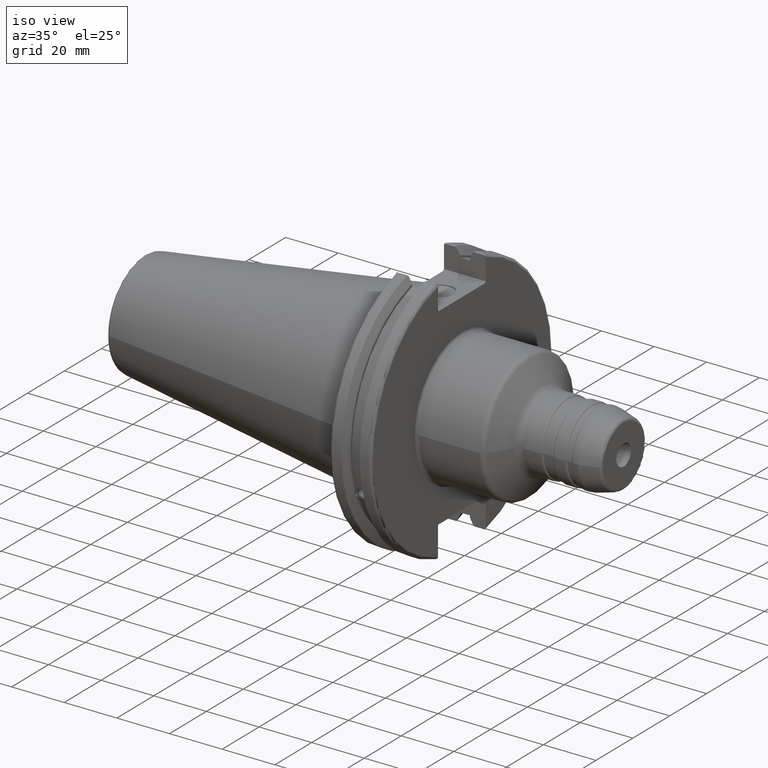
[diagram: clean part render]
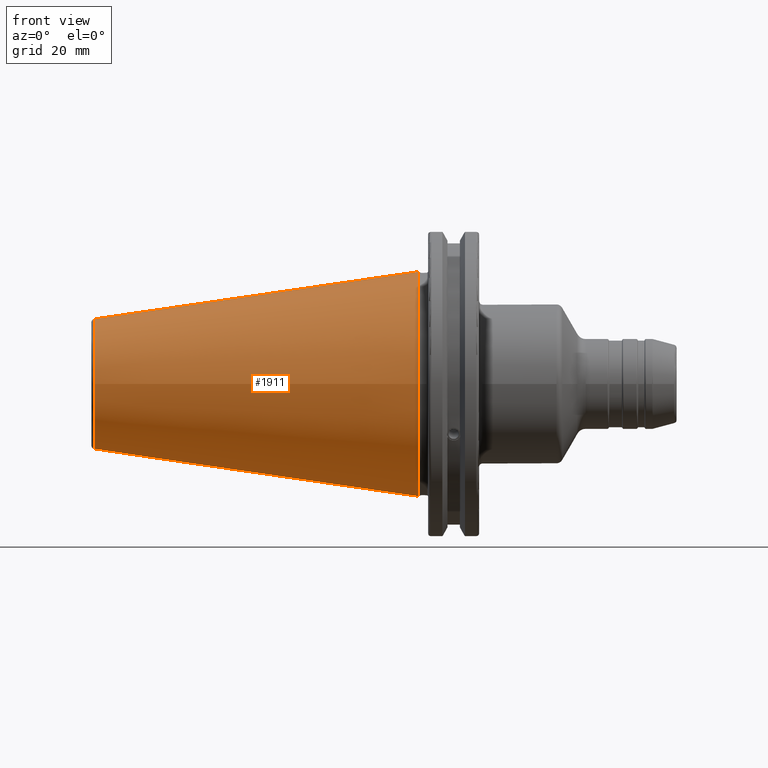
[diagram: tour spotlight — one face highlighted and labeled with its STEP entity id]
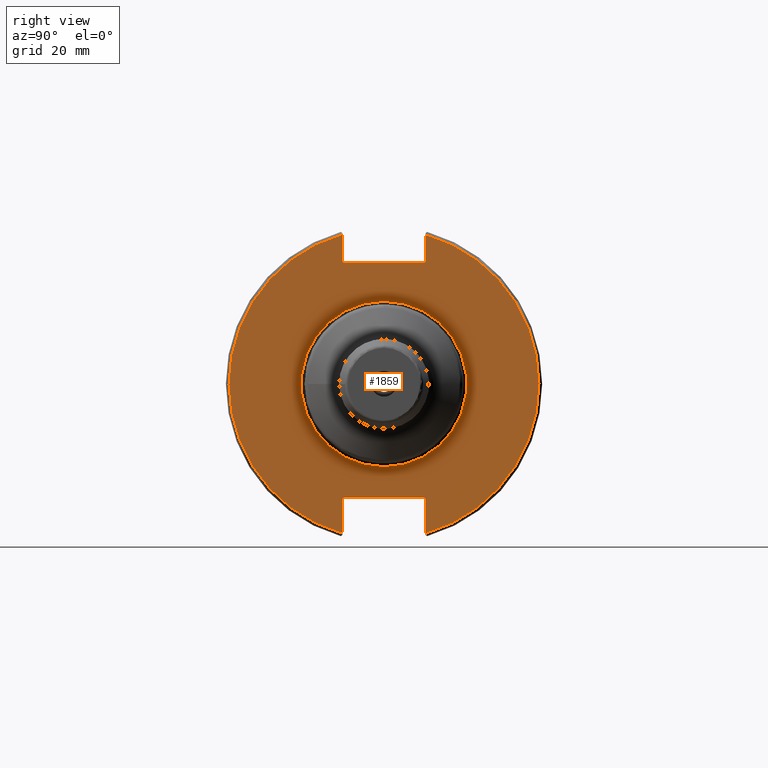
[diagram: tour spotlight — one face highlighted and labeled with its STEP entity id]
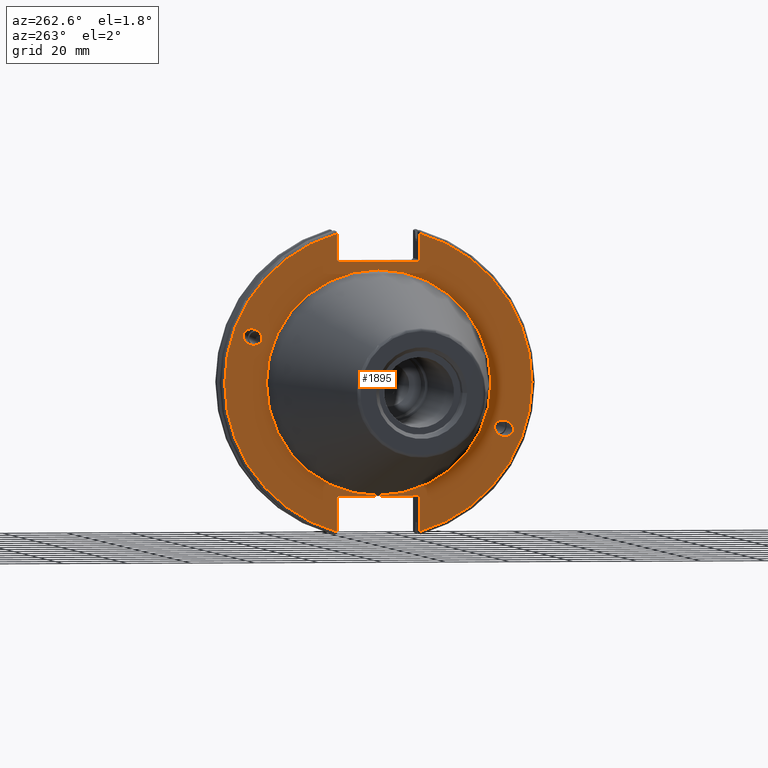
[diagram: tour spotlight — one face highlighted and labeled with its STEP entity id]
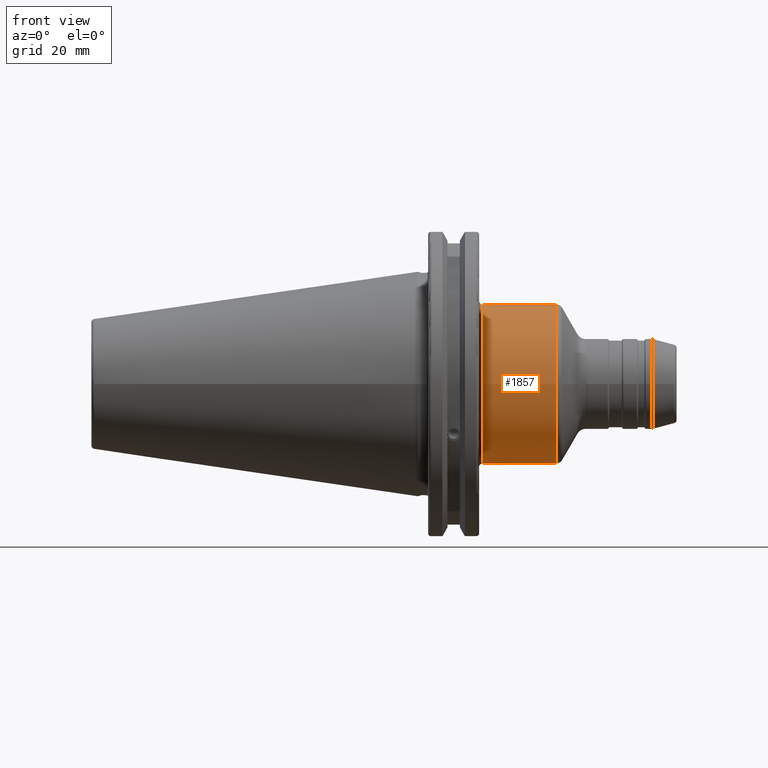
[diagram: tour spotlight — one face highlighted and labeled with its STEP entity id]
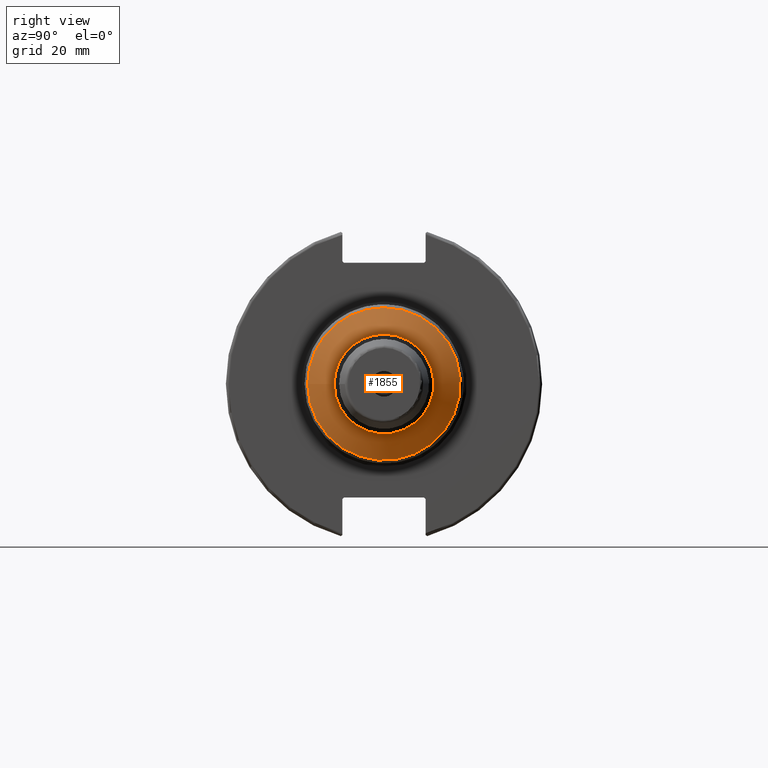
[diagram: tour spotlight — one face highlighted and labeled with its STEP entity id]
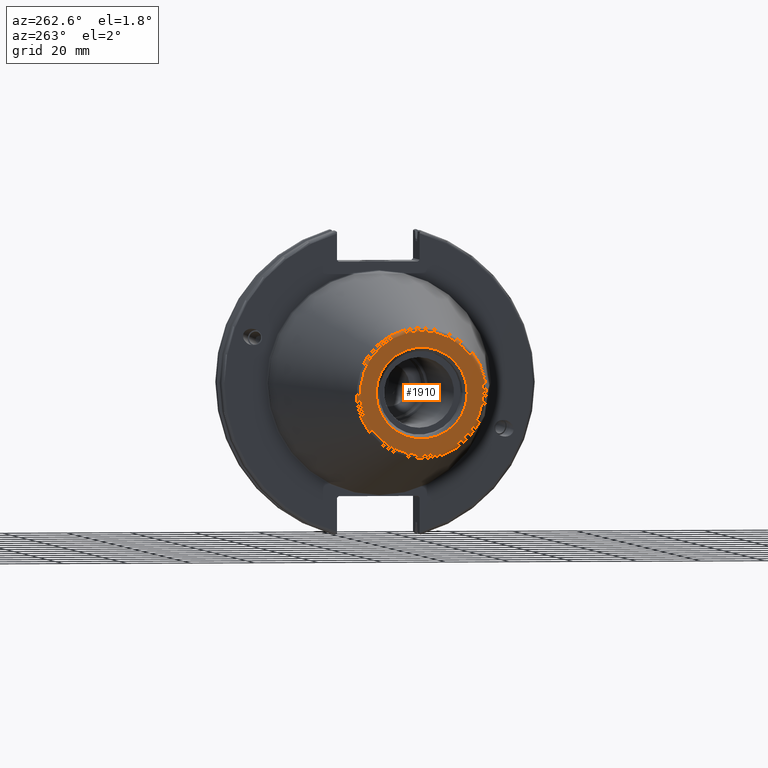
[diagram: tour spotlight — one face highlighted and labeled with its STEP entity id]
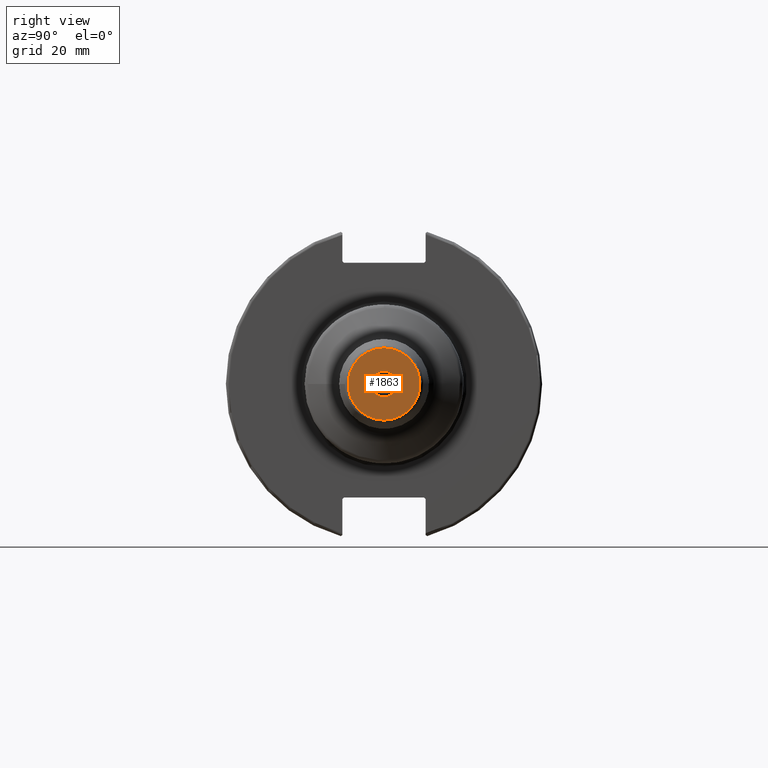
[diagram: tour spotlight — one face highlighted and labeled with its STEP entity id]
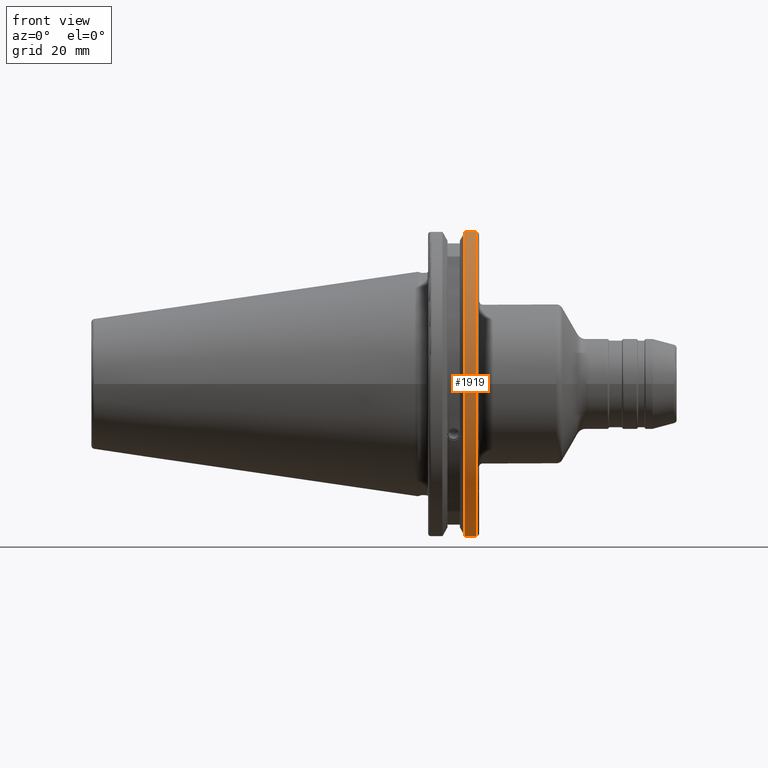
[diagram: tour spotlight — one face highlighted and labeled with its STEP entity id]
A machine part: a face-by-face anatomy tour. The part has 108 B-rep faces; the first image is the clean iso view, then the 8 largest visible faces are spotlighted one at a time (largest first), each with its STEP entity span.

Face 1 — front view, entity #1911. In plain terms, the highlighted conical surface has half-angle 8.297 deg.
Definition (entity closure, byte-faithful):
#160=CONICAL_SURFACE('',#2161,27.5166666666666,0.14481249823894);
#245=FACE_OUTER_BOUND('',#371,.T.);
#371=EDGE_LOOP('',(#1668,#1669,#1670,#1671,#1672));
#489=LINE('',#3780,#593);
#593=VECTOR('',#2691,27.5166666666666);
#722=CIRCLE('',#2155,20.233121911427);
#723=CIRCLE('',#2156,20.233121911427);
#727=CIRCLE('',#2162,34.925);
#920=VERTEX_POINT('',#3767);
#921=VERTEX_POINT('',#3768);
#924=VERTEX_POINT('',#3778);
#1185=EDGE_CURVE('',#920,#921,#722,.T.);
#1186=EDGE_CURVE('',#921,#920,#723,.T.);
#1190=EDGE_CURVE('',#924,#924,#727,.T.);
#1191=EDGE_CURVE('',#924,#921,#489,.T.);
#1668=ORIENTED_EDGE('',*,*,#1190,.F.);
#1669=ORIENTED_EDGE('',*,*,#1191,.T.);
#1670=ORIENTED_EDGE('',*,*,#1185,.F.);
#1671=ORIENTED_EDGE('',*,*,#1186,.F.);
#1672=ORIENTED_EDGE('',*,*,#1191,.F.);
#1911=ADVANCED_FACE('',(#245),#160,.T.);
#2155=AXIS2_PLACEMENT_3D('',#3769,#2675,#2676);
#2156=AXIS2_PLACEMENT_3D('',#3770,#2677,#2678);
#2161=AXIS2_PLACEMENT_3D('',#3777,#2687,#2688);
#2162=AXIS2_PLACEMENT_3D('',#3779,#2689,#2690);
#2675=DIRECTION('center_axis',(-1.,0.,0.));
#2676=DIRECTION('ref_axis',(0.,-1.,3.06161699786838E-17));
#2677=DIRECTION('center_axis',(-1.,0.,0.));
#2678=DIRECTION('ref_axis',(0.,-1.,3.06161699786838E-17));
#2687=DIRECTION('center_axis',(1.,0.,0.));
#2688=DIRECTION('ref_axis',(0.,1.,0.));
#2689=DIRECTION('center_axis',(1.,0.,0.));
#2690=DIRECTION('ref_axis',(0.,0.,-1.));
#2691=DIRECTION('',(-0.989532981063281,0.144306893071729,1.76724974695192E-17));
#3767=CARTESIAN_POINT('',(-100.744306893072,-2.47784279855872E-15,20.233121911427));
#3768=CARTESIAN_POINT('',(-100.744306893072,-20.233121911427,-2.47784279855872E-15));
#3769=CARTESIAN_POINT('Origin',(-100.744306893072,0.,-3.09730349819841E-15));
#3770=CARTESIAN_POINT('Origin',(-100.744306893072,0.,-3.09730349819841E-15));
#3777=CARTESIAN_POINT('Origin',(-50.8,0.,0.));
#3778=CARTESIAN_POINT('',(-8.88178419700125E-15,-34.925,-4.27707894602213E-15));
#3779=CARTESIAN_POINT('Origin',(0.,0.,0.));
#3780=CARTESIAN_POINT('',(-50.8,-27.5166666666666,-3.3698197756538E-15));

Face 2 — right view, entity #1859. In plain terms, the highlighted planar face has unit normal (1, 0, 0).
Definition (entity closure, byte-faithful):
#33=PLANE('',#2053);
#91=FACE_BOUND('',#304,.T.);
#193=FACE_OUTER_BOUND('',#303,.T.);
#303=EDGE_LOOP('',(#1378,#1379,#1380,#1381,#1382,#1383,#1384,#1385,#1386,
#1387,#1388,#1389));
#304=EDGE_LOOP('',(#1390));
#418=LINE('',#3026,#522);
#419=LINE('',#3028,#523);
#420=LINE('',#3030,#524);
#421=LINE('',#3032,#525);
#422=LINE('',#3034,#526);
#423=LINE('',#3038,#527);
#424=LINE('',#3040,#528);
#425=LINE('',#3042,#529);
#426=LINE('',#3044,#530);
#427=LINE('',#3045,#531);
#522=VECTOR('',#2404,10.);
#523=VECTOR('',#2405,10.);
#524=VECTOR('',#2406,10.);
#525=VECTOR('',#2407,10.);
#526=VECTOR('',#2408,10.);
#527=VECTOR('',#2411,10.);
#528=VECTOR('',#2412,10.);
#529=VECTOR('',#2413,10.);
#530=VECTOR('',#2414,10.);
#531=VECTOR('',#2415,10.);
#672=CIRCLE('',#2052,25.75);
#673=CIRCLE('',#2054,48.2125);
#674=CIRCLE('',#2055,48.2125);
#794=VERTEX_POINT('',#3018);
#795=VERTEX_POINT('',#3022);
#796=VERTEX_POINT('',#3023);
#797=VERTEX_POINT('',#3025);
#798=VERTEX_POINT('',#3027);
#799=VERTEX_POINT('',#3029);
#800=VERTEX_POINT('',#3031);
#801=VERTEX_POINT('',#3033);
#802=VERTEX_POINT('',#3035);
#803=VERTEX_POINT('',#3037);
#804=VERTEX_POINT('',#3039);
#805=VERTEX_POINT('',#3041);
#806=VERTEX_POINT('',#3043);
#1014=EDGE_CURVE('',#794,#794,#672,.T.);
#1015=EDGE_CURVE('',#795,#796,#673,.T.);
#1016=EDGE_CURVE('',#795,#797,#418,.T.);
#1017=EDGE_CURVE('',#798,#797,#419,.T.);
#1018=EDGE_CURVE('',#798,#799,#420,.T.);
#1019=EDGE_CURVE('',#800,#799,#421,.T.);
#1020=EDGE_CURVE('',#800,#801,#422,.T.);
#1021=EDGE_CURVE('',#802,#801,#674,.T.);
#1022=EDGE_CURVE('',#802,#803,#423,.T.);
#1023=EDGE_CURVE('',#804,#803,#424,.T.);
#1024=EDGE_CURVE('',#804,#805,#425,.T.);
#1025=EDGE_CURVE('',#806,#805,#426,.T.);
#1026=EDGE_CURVE('',#806,#796,#427,.T.);
#1378=ORIENTED_EDGE('',*,*,#1015,.F.);
#1379=ORIENTED_EDGE('',*,*,#1016,.T.);
#1380=ORIENTED_EDGE('',*,*,#1017,.F.);
#1381=ORIENTED_EDGE('',*,*,#1018,.T.);
#1382=ORIENTED_EDGE('',*,*,#1019,.F.);
#1383=ORIENTED_EDGE('',*,*,#1020,.T.);
#1384=ORIENTED_EDGE('',*,*,#1021,.F.);
#1385=ORIENTED_EDGE('',*,*,#1022,.T.);
#1386=ORIENTED_EDGE('',*,*,#1023,.F.);
#1387=ORIENTED_EDGE('',*,*,#1024,.T.);
#1388=ORIENTED_EDGE('',*,*,#1025,.F.);
#1389=ORIENTED_EDGE('',*,*,#1026,.T.);
#1390=ORIENTED_EDGE('',*,*,#1014,.F.);
#1859=ADVANCED_FACE('',(#193,#91),#33,.T.);
#2052=AXIS2_PLACEMENT_3D('',#3020,#2398,#2399);
#2053=AXIS2_PLACEMENT_3D('',#3021,#2400,#2401);
#2054=AXIS2_PLACEMENT_3D('',#3024,#2402,#2403);
#2055=AXIS2_PLACEMENT_3D('',#3036,#2409,#2410);
#2398=DIRECTION('center_axis',(1.,0.,0.));
#2399=DIRECTION('ref_axis',(0.,-1.,-1.22464679914735E-16));
#2400=DIRECTION('center_axis',(1.,0.,0.));
#2401=DIRECTION('ref_axis',(0.,0.,-1.));
#2402=DIRECTION('center_axis',(-1.,0.,0.));
#2403=DIRECTION('ref_axis',(0.,1.,-6.12323399573677E-17));
#2404=DIRECTION('',(0.,0.,-1.));
#2405=DIRECTION('',(0.,0.707106781186549,0.707106781186546));
#2406=DIRECTION('',(0.,-1.,0.));
#2407=DIRECTION('',(0.,0.707106781186549,-0.707106781186546));
#2408=DIRECTION('',(0.,0.,1.));
#2409=DIRECTION('center_axis',(-1.,0.,0.));
#2410=DIRECTION('ref_axis',(0.,-1.,1.60812264967664E-16));
#2411=DIRECTION('',(0.,0.,1.));
#2412=DIRECTION('',(0.,-0.707106781186549,-0.707106781186546));
#2413=DIRECTION('',(0.,1.,0.));
#2414=DIRECTION('',(0.,-0.707106781186549,0.707106781186546));
#2415=DIRECTION('',(0.,0.,-1.));
#3018=CARTESIAN_POINT('',(19.05,-3.15346550780443E-15,-25.75));
#3020=CARTESIAN_POINT('Origin',(19.05,0.,0.));
#3021=CARTESIAN_POINT('Origin',(19.05,0.,0.));
#3022=CARTESIAN_POINT('',(19.05,12.95,46.4407434937254));
#3023=CARTESIAN_POINT('',(19.05,12.95,-46.4407434937254));
#3024=CARTESIAN_POINT('Origin',(19.05,0.,0.));
#3025=CARTESIAN_POINT('',(19.05,12.95,38.219));
#3026=CARTESIAN_POINT('',(19.05,12.95,18.8595));
#3027=CARTESIAN_POINT('',(19.05,12.45,37.719));
#3028=CARTESIAN_POINT('',(19.05,0.0327499999999836,25.30175));
#3029=CARTESIAN_POINT('',(19.05,-12.45,37.719));
#3030=CARTESIAN_POINT('',(19.05,0.,37.719));
#3031=CARTESIAN_POINT('',(19.05,-12.95,38.219));
#3032=CARTESIAN_POINT('',(19.05,-0.0327499999999817,25.30175));
#3033=CARTESIAN_POINT('',(19.05,-12.95,46.4407434937254));
#3034=CARTESIAN_POINT('',(19.05,-12.95,18.8595));
#3035=CARTESIAN_POINT('',(19.05,-12.95,-46.4407434937254));
#3036=CARTESIAN_POINT('Origin',(19.05,0.,0.));
#3037=CARTESIAN_POINT('',(19.05,-12.95,-35.806));
#3038=CARTESIAN_POINT('',(19.05,-12.95,-17.653));
#3039=CARTESIAN_POINT('',(19.05,-12.45,-35.306));
#3040=CARTESIAN_POINT('',(19.05,-0.635999999999989,-23.492));
#3041=CARTESIAN_POINT('',(19.05,12.45,-35.306));
#3042=CARTESIAN_POINT('',(19.05,-3.33066907387547E-15,-35.306));
#3043=CARTESIAN_POINT('',(19.05,12.95,-35.806));
#3044=CARTESIAN_POINT('',(19.05,0.635999999999982,-23.492));
#3045=CARTESIAN_POINT('',(19.05,12.95,-17.653));

Face 3 — auxiliary view, entity #1895. In plain terms, the highlighted planar face has unit normal (-1, 0, 0).
Definition (entity closure, byte-faithful):
#31=ELLIPSE('',#2088,3.05193647190364,2.5);
#32=ELLIPSE('',#2122,3.05193647190364,2.5);
#45=PLANE('',#2132);
#103=FACE_BOUND('',#352,.T.);
#104=FACE_BOUND('',#353,.T.);
#105=FACE_BOUND('',#354,.T.);
#229=FACE_OUTER_BOUND('',#351,.T.);
#351=EDGE_LOOP('',(#1561,#1562,#1563,#1564,#1565,#1566,#1567,#1568,#1569,
#1570,#1571,#1572));
#352=EDGE_LOOP('',(#1573));
#353=EDGE_LOOP('',(#1574));
#354=EDGE_LOOP('',(#1575));
#459=LINE('',#3548,#563);
#460=LINE('',#3550,#564);
#461=LINE('',#3552,#565);
#462=LINE('',#3554,#566);
#463=LINE('',#3556,#567);
#464=LINE('',#3560,#568);
#465=LINE('',#3562,#569);
#466=LINE('',#3564,#570);
#467=LINE('',#3566,#571);
#468=LINE('',#3567,#572);
#563=VECTOR('',#2603,10.);
#564=VECTOR('',#2604,10.);
#565=VECTOR('',#2605,10.);
#566=VECTOR('',#2606,10.);
#567=VECTOR('',#2607,10.);
#568=VECTOR('',#2610,10.);
#569=VECTOR('',#2611,10.);
#570=VECTOR('',#2612,10.);
#571=VECTOR('',#2613,10.);
#572=VECTOR('',#2614,10.);
#712=CIRCLE('',#2130,35.125);
#714=CIRCLE('',#2133,48.2125);
#715=CIRCLE('',#2134,48.2125);
#835=VERTEX_POINT('',#3265);
#873=VERTEX_POINT('',#3524);
#878=VERTEX_POINT('',#3539);
#879=VERTEX_POINT('',#3544);
#880=VERTEX_POINT('',#3545);
#881=VERTEX_POINT('',#3547);
#882=VERTEX_POINT('',#3549);
#883=VERTEX_POINT('',#3551);
#884=VERTEX_POINT('',#3553);
#885=VERTEX_POINT('',#3555);
#886=VERTEX_POINT('',#3557);
#887=VERTEX_POINT('',#3559);
#888=VERTEX_POINT('',#3561);
#889=VERTEX_POINT('',#3563);
#890=VERTEX_POINT('',#3565);
#1065=EDGE_CURVE('',#835,#835,#31,.T.);
#1116=EDGE_CURVE('',#873,#873,#32,.T.);
#1123=EDGE_CURVE('',#878,#878,#712,.T.);
#1125=EDGE_CURVE('',#879,#880,#714,.T.);
#1126=EDGE_CURVE('',#879,#881,#459,.T.);
#1127=EDGE_CURVE('',#882,#881,#460,.T.);
#1128=EDGE_CURVE('',#882,#883,#461,.T.);
#1129=EDGE_CURVE('',#884,#883,#462,.T.);
#1130=EDGE_CURVE('',#884,#885,#463,.T.);
#1131=EDGE_CURVE('',#886,#885,#715,.T.);
#1132=EDGE_CURVE('',#886,#887,#464,.T.);
#1133=EDGE_CURVE('',#888,#887,#465,.T.);
#1134=EDGE_CURVE('',#888,#889,#466,.T.);
#1135=EDGE_CURVE('',#890,#889,#467,.T.);
#1136=EDGE_CURVE('',#890,#880,#468,.T.);
#1561=ORIENTED_EDGE('',*,*,#1125,.F.);
#1562=ORIENTED_EDGE('',*,*,#1126,.T.);
#1563=ORIENTED_EDGE('',*,*,#1127,.F.);
#1564=ORIENTED_EDGE('',*,*,#1128,.T.);
#1565=ORIENTED_EDGE('',*,*,#1129,.F.);
#1566=ORIENTED_EDGE('',*,*,#1130,.T.);
#1567=ORIENTED_EDGE('',*,*,#1131,.F.);
#1568=ORIENTED_EDGE('',*,*,#1132,.T.);
#1569=ORIENTED_EDGE('',*,*,#1133,.F.);
#1570=ORIENTED_EDGE('',*,*,#1134,.T.);
#1571=ORIENTED_EDGE('',*,*,#1135,.F.);
#1572=ORIENTED_EDGE('',*,*,#1136,.T.);
#1573=ORIENTED_EDGE('',*,*,#1065,.T.);
#1574=ORIENTED_EDGE('',*,*,#1116,.T.);
#1575=ORIENTED_EDGE('',*,*,#1123,.F.);
#1895=ADVANCED_FACE('',(#229,#103,#104,#105),#45,.T.);
#2088=AXIS2_PLACEMENT_3D('',#3267,#2493,#2494);
#2122=AXIS2_PLACEMENT_3D('',#3526,#2577,#2578);
#2130=AXIS2_PLACEMENT_3D('',#3541,#2595,#2596);
#2132=AXIS2_PLACEMENT_3D('',#3543,#2599,#2600);
#2133=AXIS2_PLACEMENT_3D('',#3546,#2601,#2602);
#2134=AXIS2_PLACEMENT_3D('',#3558,#2608,#2609);
#2493=DIRECTION('center_axis',(1.,0.,0.));
#2494=DIRECTION('ref_axis',(0.,-0.939692620785908,-0.342020143325668));
#2577=DIRECTION('center_axis',(1.,0.,0.));
#2578=DIRECTION('ref_axis',(0.,0.939692620785908,0.342020143325669));
#2595=DIRECTION('center_axis',(-1.,0.,0.));
#2596=DIRECTION('ref_axis',(0.,-1.,1.83697019872103E-16));
#2599=DIRECTION('center_axis',(-1.,0.,0.));
#2600=DIRECTION('ref_axis',(0.,0.,1.));
#2601=DIRECTION('center_axis',(1.,0.,0.));
#2602=DIRECTION('ref_axis',(0.,-1.,1.60812264967664E-16));
#2603=DIRECTION('',(0.,0.,-1.));
#2604=DIRECTION('',(0.,-0.707106781186549,0.707106781186546));
#2605=DIRECTION('',(0.,1.,0.));
#2606=DIRECTION('',(0.,-0.707106781186549,-0.707106781186546));
#2607=DIRECTION('',(0.,0.,1.));
#2608=DIRECTION('center_axis',(1.,0.,0.));
#2609=DIRECTION('ref_axis',(0.,1.,-6.12323399573677E-17));
#2610=DIRECTION('',(0.,0.,1.));
#2611=DIRECTION('',(0.,0.707106781186549,-0.707106781186546));
#2612=DIRECTION('',(0.,-1.,0.));
#2613=DIRECTION('',(0.,0.707106781186549,0.707106781186546));
#2614=DIRECTION('',(0.,0.,-1.));
#3265=CARTESIAN_POINT('',(3.175,-36.5992078912529,-13.3210222701368));
#3267=CARTESIAN_POINT('Origin',(3.175,-39.4670900730082,-14.3648460196781));
#3524=CARTESIAN_POINT('',(3.175,36.5992078912529,13.3210222701368));
#3526=CARTESIAN_POINT('Origin',(3.175,39.4670900730082,14.3648460196781));
#3539=CARTESIAN_POINT('',(3.175,-4.30157188200508E-15,35.125));
#3541=CARTESIAN_POINT('Origin',(3.175,0.,0.));
#3543=CARTESIAN_POINT('Origin',(3.175,49.2125,0.));
#3544=CARTESIAN_POINT('',(3.175,-12.95,46.4407434937254));
#3545=CARTESIAN_POINT('',(3.175,-12.95,-46.4407434937254));
#3546=CARTESIAN_POINT('Origin',(3.175,0.,0.));
#3547=CARTESIAN_POINT('',(3.175,-12.95,38.219));
#3548=CARTESIAN_POINT('',(3.175,-12.95,18.8595));
#3549=CARTESIAN_POINT('',(3.175,-12.45,37.719));
#3550=CARTESIAN_POINT('',(3.175,12.2703750000001,12.998625));
#3551=CARTESIAN_POINT('',(3.175,12.45,37.719));
#3552=CARTESIAN_POINT('',(3.175,24.60625,37.719));
#3553=CARTESIAN_POINT('',(3.175,12.95,38.219));
#3554=CARTESIAN_POINT('',(3.175,12.335875,37.604875));
#3555=CARTESIAN_POINT('',(3.175,12.95,46.4407434937254));
#3556=CARTESIAN_POINT('',(3.175,12.95,18.8595));
#3557=CARTESIAN_POINT('',(3.175,12.95,-46.4407434937254));
#3558=CARTESIAN_POINT('Origin',(3.175,0.,0.));
#3559=CARTESIAN_POINT('',(3.175,12.95,-35.806));
#3560=CARTESIAN_POINT('',(3.175,12.95,-17.653));
#3561=CARTESIAN_POINT('',(3.175,12.45,-35.306));
#3562=CARTESIAN_POINT('',(3.175,12.939125,-35.795125));
#3563=CARTESIAN_POINT('',(3.175,-12.45,-35.306));
#3564=CARTESIAN_POINT('',(3.175,24.60625,-35.306));
#3565=CARTESIAN_POINT('',(3.175,-12.95,-35.806));
#3566=CARTESIAN_POINT('',(3.175,11.6671250000001,-11.188875));
#3567=CARTESIAN_POINT('',(3.175,-12.95,-17.653));

Face 4 — front view, entity #1857. In plain terms, the highlighted cylindrical surface (bore or boss wall) has radius 24.75 mm, axis along (1, 0, 0).
Definition (entity closure, byte-faithful):
#191=FACE_OUTER_BOUND('',#301,.T.);
#301=EDGE_LOOP('',(#1367,#1368,#1369,#1370,#1371,#1372));
#417=LINE('',#3013,#521);
#521=VECTOR('',#2389,24.75);
#667=CIRCLE('',#2045,24.75);
#668=CIRCLE('',#2046,24.75);
#669=CIRCLE('',#2048,24.75);
#670=CIRCLE('',#2049,24.75);
#790=VERTEX_POINT('',#3006);
#791=VERTEX_POINT('',#3008);
#792=VERTEX_POINT('',#3012);
#793=VERTEX_POINT('',#3014);
#1008=EDGE_CURVE('',#790,#791,#667,.T.);
#1009=EDGE_CURVE('',#791,#790,#668,.T.);
#1010=EDGE_CURVE('',#791,#792,#417,.T.);
#1011=EDGE_CURVE('',#793,#792,#669,.T.);
#1012=EDGE_CURVE('',#792,#793,#670,.T.);
#1367=ORIENTED_EDGE('',*,*,#1009,.F.);
#1368=ORIENTED_EDGE('',*,*,#1010,.T.);
#1369=ORIENTED_EDGE('',*,*,#1011,.F.);
#1370=ORIENTED_EDGE('',*,*,#1012,.F.);
#1371=ORIENTED_EDGE('',*,*,#1010,.F.);
#1372=ORIENTED_EDGE('',*,*,#1008,.F.);
#1807=CYLINDRICAL_SURFACE('',#2047,24.75);
#1857=ADVANCED_FACE('',(#191),#1807,.T.);
#2045=AXIS2_PLACEMENT_3D('',#3009,#2383,#2384);
#2046=AXIS2_PLACEMENT_3D('',#3010,#2385,#2386);
#2047=AXIS2_PLACEMENT_3D('',#3011,#2387,#2388);
#2048=AXIS2_PLACEMENT_3D('',#3015,#2390,#2391);
#2049=AXIS2_PLACEMENT_3D('',#3016,#2392,#2393);
#2383=DIRECTION('center_axis',(1.,0.,0.));
#2384=DIRECTION('ref_axis',(0.,-1.,1.83697019872103E-16));
#2385=DIRECTION('center_axis',(1.,0.,0.));
#2386=DIRECTION('ref_axis',(0.,-1.,1.83697019872103E-16));
#2387=DIRECTION('center_axis',(1.,0.,0.));
#2388=DIRECTION('ref_axis',(0.,1.,0.));
#2389=DIRECTION('',(-1.,0.,0.));
#2390=DIRECTION('center_axis',(-1.,0.,0.));
#2391=DIRECTION('ref_axis',(0.,-1.,-1.22464679914735E-16));
#2392=DIRECTION('center_axis',(-1.,0.,0.));
#2393=DIRECTION('ref_axis',(0.,-1.,-1.22464679914735E-16));
#3006=CARTESIAN_POINT('',(43.1387840678323,-3.0310008278897E-15,24.75));
#3008=CARTESIAN_POINT('',(43.1387840678323,-24.75,-3.0310008278897E-15));
#3009=CARTESIAN_POINT('Origin',(43.1387840678323,0.,0.));
#3010=CARTESIAN_POINT('Origin',(43.1387840678323,0.,0.));
#3011=CARTESIAN_POINT('Origin',(31.6717423031058,0.,0.));
#3012=CARTESIAN_POINT('',(20.05,-24.75,-3.0310008278897E-15));
#3013=CARTESIAN_POINT('',(31.6717423031058,-24.75,-3.0310008278897E-15));
#3014=CARTESIAN_POINT('',(20.05,-3.0310008278897E-15,-24.75));
#3015=CARTESIAN_POINT('Origin',(20.05,0.,0.));
#3016=CARTESIAN_POINT('Origin',(20.05,0.,0.));

Face 5 — right view, entity #1855. In plain terms, the highlighted conical surface has half-angle 60 deg.
Definition (entity closure, byte-faithful):
#153=CONICAL_SURFACE('',#2040,19.375,1.0471975511966);
#189=FACE_OUTER_BOUND('',#299,.T.);
#299=EDGE_LOOP('',(#1355,#1356,#1357,#1358,#1359,#1360));
#416=LINE('',#3001,#520);
#520=VECTOR('',#2374,19.375);
#661=CIRCLE('',#2037,15.5);
#663=CIRCLE('',#2039,15.5);
#664=CIRCLE('',#2041,23.75);
#665=CIRCLE('',#2042,23.75);
#786=VERTEX_POINT('',#2994);
#787=VERTEX_POINT('',#2995);
#788=VERTEX_POINT('',#3000);
#789=VERTEX_POINT('',#3002);
#1001=EDGE_CURVE('',#786,#787,#661,.T.);
#1003=EDGE_CURVE('',#787,#786,#663,.T.);
#1004=EDGE_CURVE('',#786,#788,#416,.T.);
#1005=EDGE_CURVE('',#789,#788,#664,.T.);
#1006=EDGE_CURVE('',#788,#789,#665,.T.);
#1355=ORIENTED_EDGE('',*,*,#1001,.F.);
#1356=ORIENTED_EDGE('',*,*,#1004,.T.);
#1357=ORIENTED_EDGE('',*,*,#1005,.F.);
#1358=ORIENTED_EDGE('',*,*,#1006,.F.);
#1359=ORIENTED_EDGE('',*,*,#1004,.F.);
#1360=ORIENTED_EDGE('',*,*,#1003,.F.);
#1855=ADVANCED_FACE('',(#189),#153,.T.);
#2037=AXIS2_PLACEMENT_3D('',#2996,#2366,#2367);
#2039=AXIS2_PLACEMENT_3D('',#2998,#2370,#2371);
#2040=AXIS2_PLACEMENT_3D('',#2999,#2372,#2373);
#2041=AXIS2_PLACEMENT_3D('',#3003,#2375,#2376);
#2042=AXIS2_PLACEMENT_3D('',#3004,#2377,#2378);
#2366=DIRECTION('center_axis',(1.,0.,0.));
#2367=DIRECTION('ref_axis',(0.,-1.,3.06161699786838E-17));
#2370=DIRECTION('center_axis',(1.,0.,0.));
#2371=DIRECTION('ref_axis',(0.,-1.,3.06161699786838E-17));
#2372=DIRECTION('center_axis',(-1.,0.,0.));
#2373=DIRECTION('ref_axis',(0.,1.,0.));
#2374=DIRECTION('',(-0.5,-0.866025403784438,-1.06057523872491E-16));
#2375=DIRECTION('center_axis',(-1.,0.,0.));
#2376=DIRECTION('ref_axis',(0.,-1.,3.06161699786838E-17));
#2377=DIRECTION('center_axis',(-1.,0.,0.));
#2378=DIRECTION('ref_axis',(0.,-1.,3.06161699786838E-17));
#2994=CARTESIAN_POINT('',(49.6339745962156,-15.5,-1.8982025386784E-15));
#2995=CARTESIAN_POINT('',(49.6339745962156,-1.8982025386784E-15,15.5));
#2996=CARTESIAN_POINT('Origin',(49.6339745962156,0.,-2.372753173348E-15));
#2998=CARTESIAN_POINT('Origin',(49.6339745962156,0.,-2.372753173348E-15));
#2999=CARTESIAN_POINT('Origin',(47.3967423031058,0.,0.));
#3000=CARTESIAN_POINT('',(44.8708348754012,-23.75,-2.90853614797496E-15));
#3001=CARTESIAN_POINT('',(47.3967423031058,-19.375,-2.372753173348E-15));
#3002=CARTESIAN_POINT('',(44.8708348754012,-2.90853614797496E-15,23.75));
#3003=CARTESIAN_POINT('Origin',(44.8708348754012,0.,-3.6356701849687E-15));
#3004=CARTESIAN_POINT('Origin',(44.8708348754012,0.,-3.6356701849687E-15));

Face 6 — auxiliary view, entity #1910. In plain terms, the highlighted planar face has unit normal (-1, 0, 0).
Definition (entity closure, byte-faithful):
#53=PLANE('',#2159);
#106=FACE_BOUND('',#370,.T.);
#244=FACE_OUTER_BOUND('',#369,.T.);
#369=EDGE_LOOP('',(#1666));
#370=EDGE_LOOP('',(#1667));
#725=CIRCLE('',#2158,19.2435889303637);
#726=CIRCLE('',#2160,14.2875);
#922=VERTEX_POINT('',#3771);
#923=VERTEX_POINT('',#3775);
#1188=EDGE_CURVE('',#922,#922,#725,.T.);
#1189=EDGE_CURVE('',#923,#923,#726,.T.);
#1666=ORIENTED_EDGE('',*,*,#1188,.F.);
#1667=ORIENTED_EDGE('',*,*,#1189,.T.);
#1910=ADVANCED_FACE('',(#244,#106),#53,.T.);
#2158=AXIS2_PLACEMENT_3D('',#3773,#2681,#2682);
#2159=AXIS2_PLACEMENT_3D('',#3774,#2683,#2684);
#2160=AXIS2_PLACEMENT_3D('',#3776,#2685,#2686);
#2681=DIRECTION('center_axis',(1.,0.,0.));
#2682=DIRECTION('ref_axis',(0.,-1.,1.83697019872103E-16));
#2683=DIRECTION('center_axis',(-1.,0.,0.));
#2684=DIRECTION('ref_axis',(0.,0.,1.));
#2685=DIRECTION('center_axis',(1.,0.,0.));
#2686=DIRECTION('ref_axis',(0.,0.,-1.));
#3771=CARTESIAN_POINT('',(-101.6,-2.35665995876774E-15,19.2435889303637));
#3773=CARTESIAN_POINT('Origin',(-101.6,0.,0.));
#3774=CARTESIAN_POINT('Origin',(-101.6,20.1083333333333,0.));
#3775=CARTESIAN_POINT('',(-101.6,-14.2875,-1.74971411428178E-15));
#3776=CARTESIAN_POINT('Origin',(-101.6,0.,0.));

Face 7 — right view, entity #1863. In plain terms, the highlighted planar face has unit normal (1, 0, 0).
Definition (entity closure, byte-faithful):
#34=PLANE('',#2066);
#92=FACE_BOUND('',#309,.T.);
#197=FACE_OUTER_BOUND('',#308,.T.);
#308=EDGE_LOOP('',(#1408));
#309=EDGE_LOOP('',(#1409));
#680=CIRCLE('',#2064,11.232673012021);
#682=CIRCLE('',#2067,3.99999999999999);
#811=VERTEX_POINT('',#3059);
#812=VERTEX_POINT('',#3063);
#1033=EDGE_CURVE('',#811,#811,#680,.T.);
#1035=EDGE_CURVE('',#812,#812,#682,.T.);
#1408=ORIENTED_EDGE('',*,*,#1033,.F.);
#1409=ORIENTED_EDGE('',*,*,#1035,.F.);
#1863=ADVANCED_FACE('',(#197,#92),#34,.T.);
#2064=AXIS2_PLACEMENT_3D('',#3060,#2433,#2434);
#2066=AXIS2_PLACEMENT_3D('',#3062,#2437,#2438);
#2067=AXIS2_PLACEMENT_3D('',#3064,#2439,#2440);
#2433=DIRECTION('center_axis',(-1.,0.,0.));
#2434=DIRECTION('ref_axis',(0.,-1.,1.83697019872103E-16));
#2437=DIRECTION('center_axis',(1.,0.,0.));
#2438=DIRECTION('ref_axis',(0.,0.,-1.));
#2439=DIRECTION('center_axis',(1.,0.,0.));
#2440=DIRECTION('ref_axis',(0.,0.,-1.));
#3059=CARTESIAN_POINT('',(80.5,-1.37560570500404E-15,11.232673012021));
#3060=CARTESIAN_POINT('Origin',(80.5,0.,0.));
#3062=CARTESIAN_POINT('Origin',(80.5,3.99999999999999,0.));
#3063=CARTESIAN_POINT('',(80.5,-3.99999999999998,-4.89858719658939E-16));
#3064=CARTESIAN_POINT('Origin',(80.5,0.,0.));

Face 8 — front view, entity #1919. In plain terms, the highlighted cylindrical surface (partial cylindrical patch) has radius 49.2125 mm, axis along (1, 0, 0).
Definition (entity closure, byte-faithful):
#253=FACE_OUTER_BOUND('',#379,.T.);
#379=EDGE_LOOP('',(#1709,#1710,#1711,#1712));
#497=LINE('',#3799,#601);
#498=LINE('',#3801,#602);
#601=VECTOR('',#2713,10.);
#602=VECTOR('',#2716,10.);
#692=CIRCLE('',#2091,49.2125);
#718=CIRCLE('',#2142,49.2125);
#838=VERTEX_POINT('',#3275);
#839=VERTEX_POINT('',#3279);
#903=VERTEX_POINT('',#3644);
#904=VERTEX_POINT('',#3653);
#1069=EDGE_CURVE('',#839,#838,#692,.T.);
#1156=EDGE_CURVE('',#903,#904,#718,.T.);
#1200=EDGE_CURVE('',#904,#838,#497,.T.);
#1201=EDGE_CURVE('',#839,#903,#498,.T.);
#1709=ORIENTED_EDGE('',*,*,#1156,.F.);
#1710=ORIENTED_EDGE('',*,*,#1201,.F.);
#1711=ORIENTED_EDGE('',*,*,#1069,.T.);
#1712=ORIENTED_EDGE('',*,*,#1200,.F.);
#1825=CYLINDRICAL_SURFACE('',#2170,49.2125);
#1919=ADVANCED_FACE('',(#253),#1825,.T.);
#2091=AXIS2_PLACEMENT_3D('',#3280,#2499,#2500);
#2142=AXIS2_PLACEMENT_3D('',#3654,#2637,#2638);
#2170=AXIS2_PLACEMENT_3D('',#3800,#2714,#2715);
#2499=DIRECTION('center_axis',(1.,0.,0.));
#2500=DIRECTION('ref_axis',(0.,0.,-1.));
#2637=DIRECTION('center_axis',(1.,0.,0.));
#2638=DIRECTION('ref_axis',(0.,-1.,1.60812264967664E-16));
#2713=DIRECTION('',(-1.,0.,0.));
#2714=DIRECTION('center_axis',(1.,0.,0.));
#2715=DIRECTION('ref_axis',(0.,-1.,1.22464679914735E-16));
#2716=DIRECTION('',(1.,0.,0.));
#3275=CARTESIAN_POINT('',(14.6602090340487,-13.4317035994433,-47.3440544806494));
#3279=CARTESIAN_POINT('',(14.6602090340487,-13.4317035994433,47.3440544806494));
#3280=CARTESIAN_POINT('Origin',(14.6602090340487,0.,0.));
#3644=CARTESIAN_POINT('',(18.05,-13.4317035994433,47.3440544806494));
#3653=CARTESIAN_POINT('',(18.05,-13.4317035994433,-47.3440544806494));
#3654=CARTESIAN_POINT('Origin',(18.05,0.,0.));
#3799=CARTESIAN_POINT('',(16.8551045170244,-13.4317035994433,-47.3440544806494));
#3800=CARTESIAN_POINT('Origin',(16.8551045170244,0.,0.));
#3801=CARTESIAN_POINT('',(16.8551045170244,-13.4317035994433,47.3440544806494));